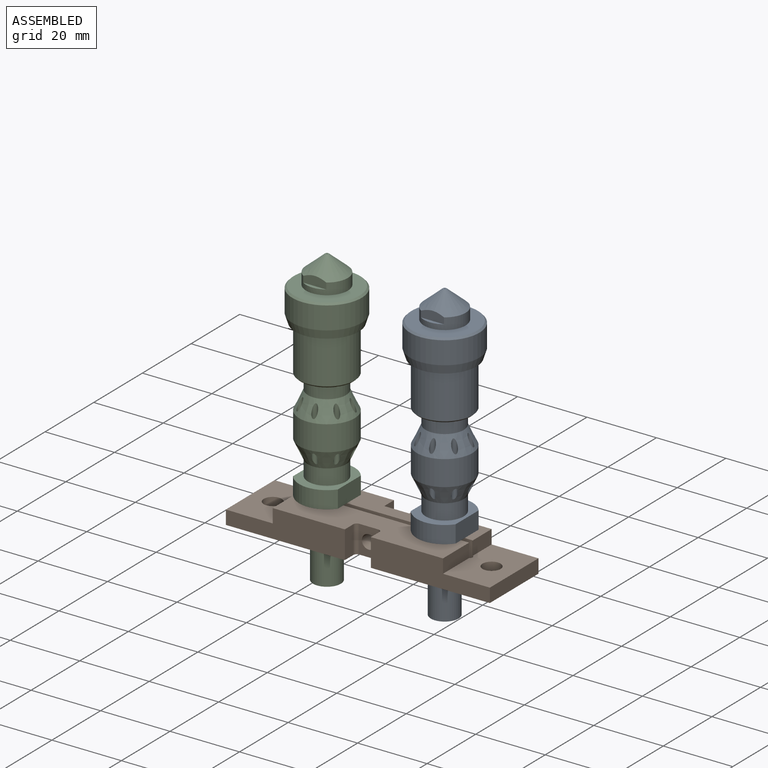
[diagram: assembled view]
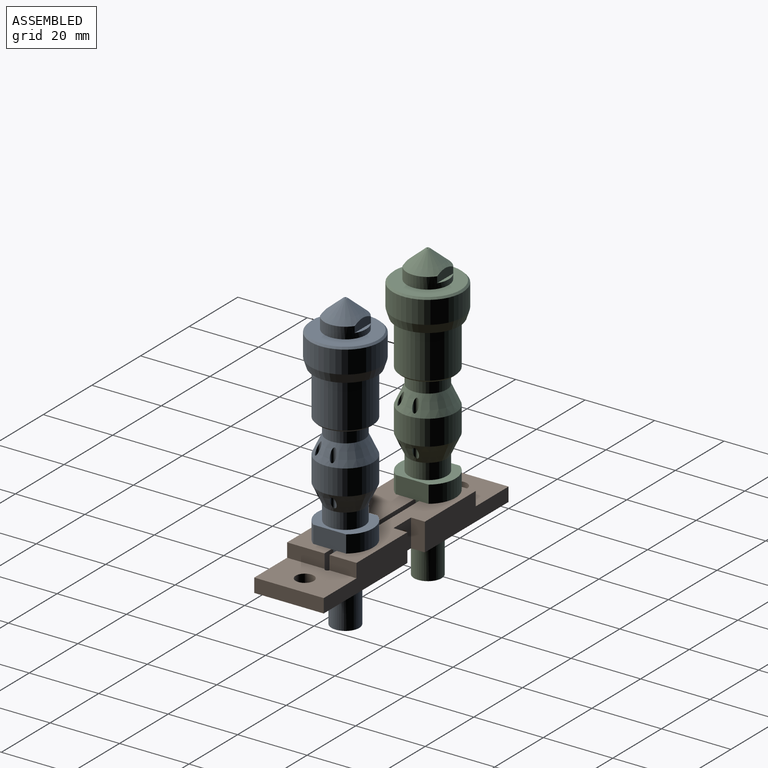
[diagram: assembled view, second angle]
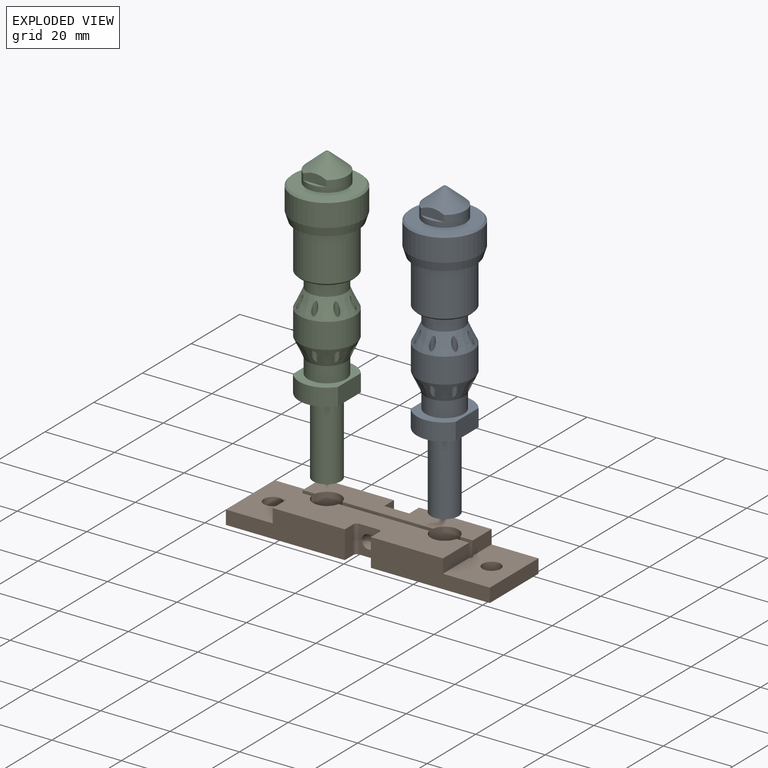
[diagram: exploded view]
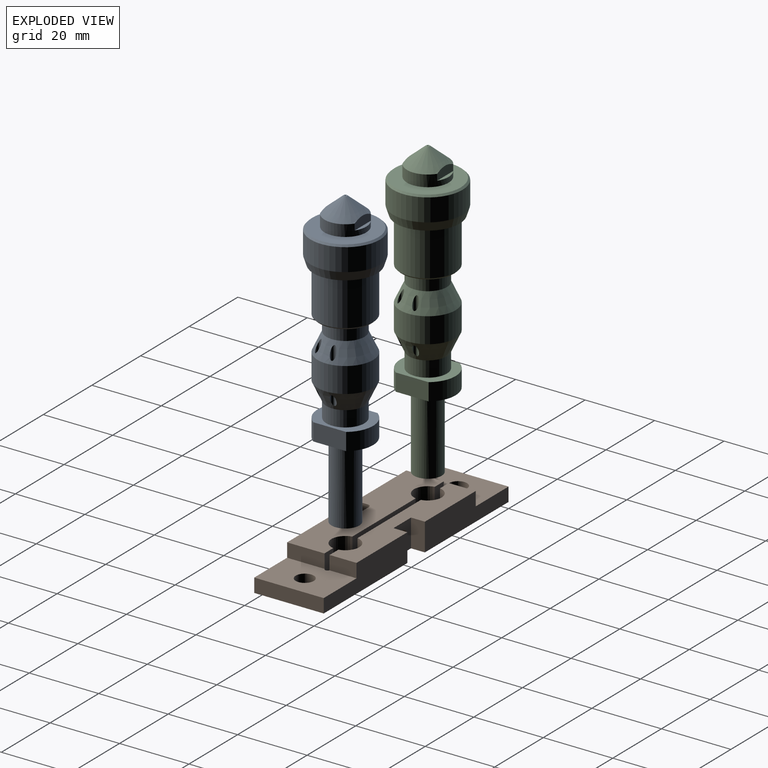
[diagram: exploded view, second angle]
ASSEMBLY  parts=3 mates=2
PART A: 47 faces, bbox 20x20x84.8 mm
  f0: plane 16x12.9mm, normal (0,0,1), area 130.8mm2, adj f39,f40,f42,f43,f45
  f1: cylinder r=1.7mm len=77.3mm, axis (0,0,-1), area 825.7mm2, adj f2,f46
  f2: plane 3.4x3.4mm, normal (0,0,1), area 9mm2, adj f1,f24
  f3: cylinder r=0.8mm len=15.86mm, axis (0,0,-1), area 61.9mm2, adj f17,f18
  f4: cylinder r=0.8mm len=13.5mm, axis (0,0,-1), area 67.8mm2, adj f5,f15,f29
  f5: plane 1.6x1.6mm, normal (0,0,1), area 2mm2, adj f4
  f6: cylinder r=0.8mm len=15.86mm, axis (0,0,-1), area 61.9mm2, adj f17,f18
  f7: plane 1.6x1.6mm, normal (0,0,1), area 2mm2, adj f8
  f8: cylinder r=0.8mm len=13.5mm, axis (0,0,-1), area 67.8mm2, adj f7,f15,f29
  f9: cylinder r=0.8mm len=15.86mm, axis (0,0,-1), area 61.9mm2, adj f17,f18
  f10: cylinder r=0.8mm len=13.5mm, axis (0,0,-1), area 67.9mm2, adj f11,f15,f29
  f11: plane 1.6x1.6mm, normal (0,0,1), area 2mm2, adj f10
  f12: cylinder r=0.8mm len=15.86mm, axis (0,0,-1), area 61.9mm2, adj f17,f18
  f13: plane 1.6x1.6mm, normal (0,0,1), area 2mm2, adj f14
  f14: cylinder r=0.8mm len=13.5mm, axis (0,0,-1), area 67.9mm2, adj f13,f15,f29
  f15: plane 15x15mm, normal (0,0,1), area 73.9mm2, adj f4,f8,f10,f14,f29,f36
  f16: plane 16x12.9mm, normal (0,0,-1), area 86.1mm2, adj f37,f39,f40,f42,f43
  f17: cone r=7.6mm half-angle=25deg, axis (0,0,1), area 232mm2, adj f3,f6,f9,f12,f36,f38
  f18: cone r=7.6mm half-angle=25deg, axis (0,0,-1), area 231.6mm2, adj f3,f6,f9,f12,f37,f38
  f19: plane 6.63x1mm, normal (0,0,-1), area 4.5mm2, adj f20,f23
  f20: plane 6.63x3.04mm, normal (-1,0,0), area 15.6mm2, adj f19,f23,f26
  f21: plane 6.63x1mm, normal (0,0,-1), area 4.5mm2, adj f22,f23
  f22: plane 6.63x3.04mm, normal (1,0,0), area 15.6mm2, adj f21,f23,f26
  f23: cylinder r=6mm len=12mm, axis (0,0,1), area 99.1mm2, adj f19,f20,f21,f22,f26,f27
  f24: cylinder r=0.15mm len=6.5mm, axis (0,0,1), area 6.1mm2, adj f2,f25
  f25: plane 1x1mm, normal (0,0,-1), area 0.7mm2, adj f24,f26
  f26: cone r=3.25mm half-angle=49.5deg, axis (0,0,1), area 135.9mm2, adj f20,f22,f23,f25
  f27: plane 12x12mm, normal (0,0,1), area 34.6mm2, adj f23,f28
  f28: cylinder r=5mm len=10mm, axis (0,0,1), area 9.4mm2, adj f27,f33
  f29: cone r=7.5mm half-angle=45deg, axis (0,0,-1), area 34.4mm2, adj f4,f8,f10,f14,f15,f30
  f30: cylinder r=8mm len=16mm, axis (0,0,-1), area 653.5mm2, adj f29,f35
  f31: cone r=9.5mm half-angle=45deg, axis (0,0,1), area 43.3mm2, adj f32,f33
  f32: cylinder r=10mm len=20mm, axis (0,0,-1), area 408.4mm2, adj f31,f34
  f33: plane 19x19mm, normal (0,0,-1), area 205mm2, adj f28,f31
  f34: cone r=9.2mm half-angle=17.7deg, axis (0,0,-1), area 158.3mm2, adj f32,f35
  f35: plane 18.4x18.4mm, normal (0,0,1), area 64.8mm2, adj f30,f34
  f36: cylinder r=5.5mm len=11mm, axis (0,0,1), area 138.2mm2, adj f15,f17
  f37: cylinder r=5.5mm len=11mm, axis (0,0,1), area 155.5mm2, adj f16,f18
  f38: cylinder r=8mm len=16mm, axis (0,0,-1), area 365.8mm2, adj f17,f18
  f39: cylinder r=8mm len=12.9mm, axis (0,0,-1), area 75mm2, adj f0,f16,f42,f43
  f40: cylinder r=8mm len=12.9mm, axis (0,0,-1), area 75mm2, adj f0,f16,f42,f43
  f41: plane 8x8mm, normal (0,0,1), area 27.4mm2, adj f44,f46
  f42: plane 9.47x5mm, normal (0,-1,0), area 47.3mm2, adj f0,f16,f39,f40
  f43: plane 9.47x5mm, normal (0,1,0), area 47.3mm2, adj f0,f16,f39,f40
  f44: cylinder r=4mm len=21mm, axis (0,0,1), area 527.8mm2, adj f41,f45
  f45: torus R=4mm, axis (0,0,-1), area 36.3mm2, adj f0,f44
  f46: cone r=2.7mm half-angle=45deg, axis (0,0,1), area 19.5mm2, adj f1,f41
PART B: 39 faces, bbox 76x20x8 mm
  f0: cylinder r=4mm len=8mm, axis (0,0,-1), area 88.5mm2, adj f1,f15,f16,f17
  f1: plane 26.04x8mm, normal (0,1,0), area 195.8mm2, adj f0,f2,f16,f17,f18
  f2: cylinder r=4mm len=8mm, axis (0,0,-1), area 88.5mm2, adj f1,f3,f16,f17
  f3: plane 8x3.37mm, normal (0,1,0), area 27mm2, adj f2,f4,f16,f17
  f4: cylinder r=0.75mm len=8mm, axis (0,0,-1), area 11.5mm2, adj f3,f5,f16,f17,f27,f28,f31,f37
  f5: plane 10.79x4mm, normal (-1,0,0), area 43.2mm2, adj f4,f6,f16,f37
  f6: plane 34.25x8mm, normal (0,-1,0), area 220mm2, adj f5,f7,f16,f17,f35,f37
  f7: plane 8x3.5mm, normal (1,0,0), area 28mm2, adj f6,f8,f16,f17
  f8: cylinder r=1mm len=8mm, axis (0,0,-1), area 12.6mm2, adj f7,f9,f16,f17
  f9: plane 8x5.5mm, normal (0,-1,0), area 31.4mm2, adj f8,f10,f16,f17,f18
  f10: cylinder r=1mm len=8mm, axis (0,0,-1), area 12.6mm2, adj f9,f11,f16,f17
  f11: plane 8x3.5mm, normal (-1,0,0), area 28mm2, adj f10,f12,f16,f17
  f12: plane 34.25x8mm, normal (0,-1,0), area 220mm2, adj f11,f13,f16,f17,f33,f34
  f13: plane 10.79x4mm, normal (1,0,0), area 43.2mm2, adj f12,f14,f16,f34
  f14: cylinder r=0.75mm len=8mm, axis (0,0,-1), area 11.5mm2, adj f13,f15,f16,f17,f20,f21,f31,f34
  f15: plane 8x3.37mm, normal (0,1,0), area 27mm2, adj f0,f14,f16,f17
  f16: plane 49x10.79mm, normal (0,0,1), area 455.1mm2, adj f0,f1,f2,f3,f4,f5,f6,f7
  f17: plane 76x20mm, normal (0,0,-1), area 1264.2mm2, adj f0,f1,f2,f3,f4,f6,f7,f8
  f18: cylinder r=2mm len=6.25mm, axis (0,-1,0), area 78.5mm2, adj f1,f9
  f19: cylinder r=4mm len=8mm, axis (0,0,-1), area 88.5mm2, adj f17,f20,f30,f31
  f20: plane 8x3.37mm, normal (0,-1,0), area 27mm2, adj f14,f17,f19,f31
  f21: plane 7.79x4mm, normal (1,0,0), area 31.2mm2, adj f14,f22,f31,f34
  f22: plane 34.4x8mm, normal (0,1,0), area 221.2mm2, adj f17,f21,f23,f31,f33,f34
  f23: plane 8x4mm, normal (-1,0,0), area 32mm2, adj f17,f22,f24,f31
  f24: plane 8x7.2mm, normal (0,1,0), area 45mm2, adj f17,f23,f25,f31,f38
  f25: plane 8x4mm, normal (1,0,0), area 32mm2, adj f17,f24,f26,f31
  f26: plane 34.4x8mm, normal (0,1,0), area 221.2mm2, adj f17,f25,f27,f31,f35,f37
  f27: plane 7.79x4mm, normal (-1,0,0), area 31.2mm2, adj f4,f26,f31,f37
  f28: plane 8x3.37mm, normal (0,-1,0), area 27mm2, adj f4,f17,f29,f31
  f29: cylinder r=4mm len=8mm, axis (0,0,-1), area 88.5mm2, adj f17,f28,f30,f31
  f30: plane 26.04x8mm, normal (0,-1,0), area 195.8mm2, adj f17,f19,f29,f31,f38
  f31: plane 49x7.79mm, normal (0,0,1), area 312.6mm2, adj f4,f14,f19,f20,f21,f22,f23,f24
  f32: cylinder r=2.6mm len=5.2mm, axis (0,0,-1), area 65.3mm2, adj f17,f34
  f33: plane 20x4mm, normal (1,0,0), area 80mm2, adj f12,f17,f22,f34
  f34: plane 20x13.5mm, normal (0,0,1), area 248.2mm2, adj f12,f13,f14,f21,f22,f32,f33
  f35: plane 20x4mm, normal (-1,0,0), area 80mm2, adj f6,f17,f26,f37
  f36: cylinder r=2.6mm len=5.2mm, axis (0,0,-1), area 65.3mm2, adj f17,f37
  f37: plane 20x13.5mm, normal (0,0,1), area 248.2mm2, adj f4,f5,f6,f26,f27,f35,f36
  f38: cylinder r=2mm len=4mm, axis (0,-1,0), area 47.1mm2, adj f24,f30
PART C: same geometry as A
PLACE A rot(axis=(0.71,0.71,0),180deg) t=(-2.18,7.5,40.71)mm
PLACE B t=(-19.13,-4,39.71)mm
PLACE C rot(axis=(0.71,0.71,0),180deg) t=(-36.08,7.5,40.71)mm
MATE cylindrical C.f45 <-> B.f2  axis (0,0,-1) through (-36.08,7.5,47.71)mm
MATE cylindrical A.f44 <-> B.f0  axis (0,0,-1) through (-2.18,7.5,47.71)mm
